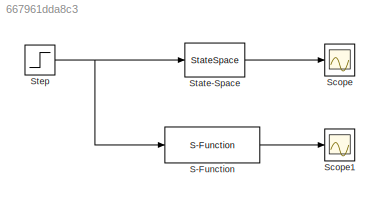
MODEL slx_667961dda8c3
KIND model
CONFIG AbsTol = auto
CONFIG EnableMultiTasking = on
CONFIG FixedStep = auto
CONFIG MaxStep = 0.01
CONFIG MinStep = auto
CONFIG RelTol = 1e-3
CONFIG SampleTimeConstraint = Unconstrained
CONFIG Solver = ode45
CONFIG SolverName = ode45
CONFIG StartTime = 0.0
CONFIG StopTime = 0.2
BLOCK [S-Function] S-Function
  EnableBusSupport = off
  FunctionName = sfunStateSpace
  Parameters = [ -0.09  -0.01 ;  1   ,  0   ]  [  1    -7  ;   0   , -2   ] [  0    2  ;  1   , -5   ] [ -3   0   ;   1   , 0     ]
  Ports = [1, 1]
  SFcnIsStateOwnerBlock = off
  SFunctionDeploymentMode = off
BLOCK [Scope] Scope
  NumInputPorts = 1
  Ports = [1]
  ScopeSpecificationString = Simulink.scopes.TimeScopeBlockCfg('CurrentConfiguration', extmgr.ConfigurationSet(extmgr.Configuration('Core','General UI',true),extmgr.Configuration('Core','Source UI',true),extmgr.Configuration('Sources','WiredSimulink',true,'DataLoggingSaveFormat','StructureWithTime','DataLoggingLimitDataPoints',true,'DataLoggingDecimation','1','DataLoggingDecimateData',true),extmgr.Configuration('Visuals','Tim...<+1688ch>
BLOCK [Scope] Scope1
  NumInputPorts = 1
  Ports = [1]
  ScopeSpecificationString = Simulink.scopes.TimeScopeBlockCfg('CurrentConfiguration', extmgr.ConfigurationSet(extmgr.Configuration('Core','General UI',true),extmgr.Configuration('Core','Source UI',true),extmgr.Configuration('Sources','WiredSimulink',true,'DataLoggingVariableName','ScopeData1','DataLoggingSaveFormat','StructureWithTime','DataLoggingLimitDataPoints',true,'DataLoggingDecimation','1','DataLoggingDecimateData',tr...<+4278ch>
BLOCK [StateSpace] State-Space
  A = [ -0.09  -0.01 ;  1   ,  0   ]
  B = [  1    -7  ;   0   , -2   ]
  C = [  0    2  ;  1   , -5   ]
  D = [ -3   0   ;   1   , 0     ]
  InitialCondition = 0
  Ports = [1, 1]
BLOCK [Step] Step
  After = [1 1]
  Before = [0 0]
  SampleTime = 0
  Time = 0.1
LINE S-Function:1 -> Scope1:1
LINE State-Space:1 -> Scope:1
NET Step:1 -> S-Function:1, State-Space:1
note: NET lines group one-source signal fan-out (src -> all destinations, sorted); 1:1 wires keep LINE
